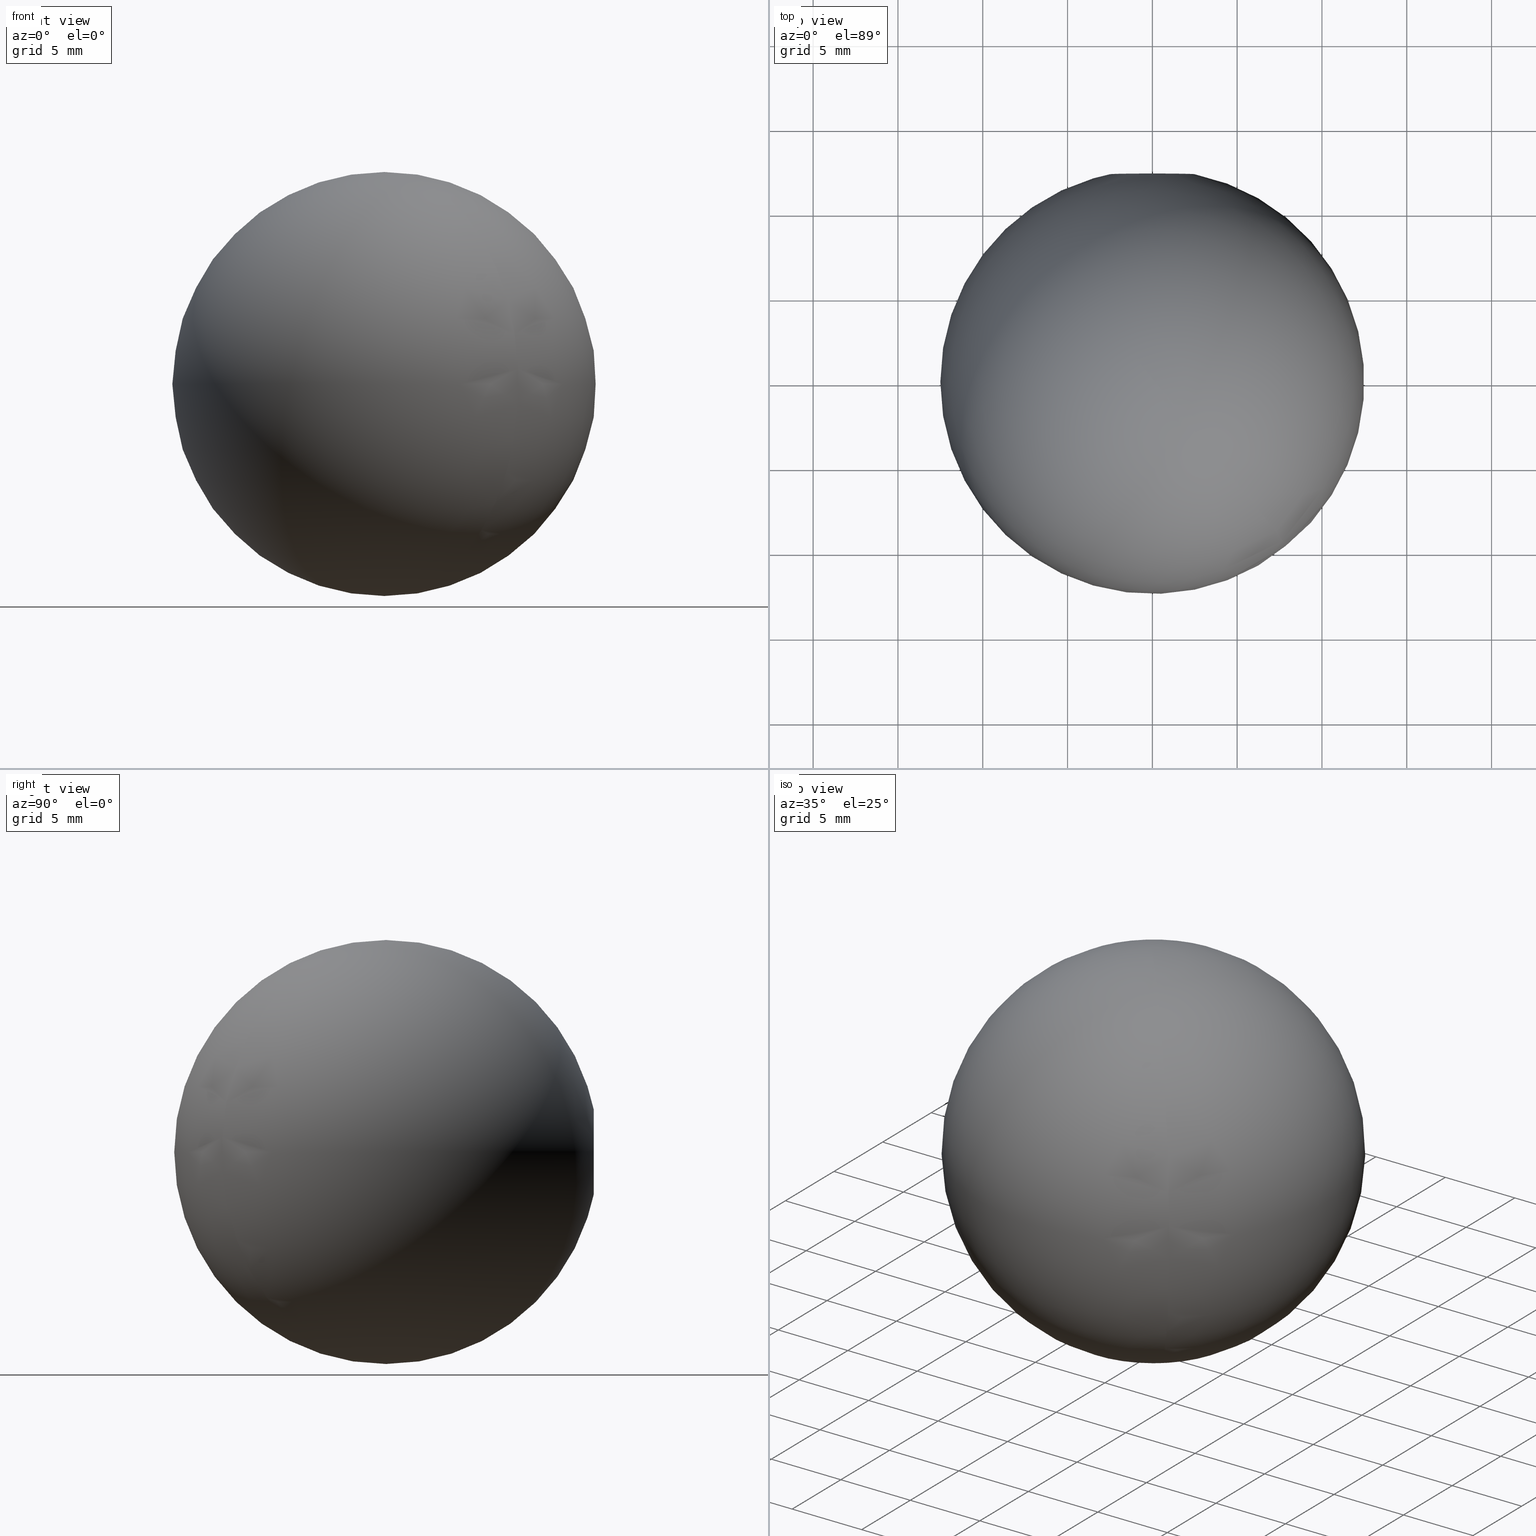
[diagram: canonical four-view strip — front | top / right | iso, engineering-drawing reading convention]
A machine part, canonical four-view strip (front | top / right | iso — engineering-drawing reading convention). The complete STEP part file that produces these views, byte-faithful:
ISO-10303-21;
HEADER;
FILE_DESCRIPTION (( 'STEP AP203' ),
    '1' );
FILE_NAME ('3572-M6.STEP',
    '2022-03-21T07:36:23',
    ( '' ),
    ( '' ),
    'SwSTEP 2.0',
    'SolidWorks 2018',
    '' );
FILE_SCHEMA (( 'CONFIG_CONTROL_DESIGN' ));
ENDSEC;

DATA;
#1 = DIRECTION ( 'NONE',  ( 0.000000000000000000, 0.000000000000000000, 1.000000000000000000 ) ) ;
#2 = APPLICATION_CONTEXT ( 'configuration controlled 3d designs of mechanical parts and assemblies' ) ;
#3 = APPROVAL ( #59, 'UNSPECIFIED' ) ;
#4 = CLOSED_SHELL ( 'NONE', ( #34, #88, #70 ) ) ;
#5 = PERSON ( 'UNSPECIFIED', 'UNSPECIFIED', 'UNSPECIFIED', ('UNSPECIFIED'), ('UNSPECIFIED'), ('UNSPECIFIED') ) ;
#6 = ORIENTED_EDGE ( 'NONE', *, *, #30, .F. ) ;
#7 = LOCAL_TIME ( 8, 36, 23.00000000000000000, #56 ) ;
#8 = CC_DESIGN_PERSON_AND_ORGANIZATION_ASSIGNMENT ( #48, #81, ( #86 ) ) ;
#9 = CARTESIAN_POINT ( 'NONE',  ( 0.000000000000000000, 12.24744871391589207, -2.499999999999992895 ) ) ;
#10 = CC_DESIGN_APPROVAL ( #3, ( #97 ) ) ;
#11 = CARTESIAN_POINT ( 'NONE',  ( 0.000000000000000000, 0.000000000000000000, 0.000000000000000000 ) ) ;
#12 = CARTESIAN_POINT ( 'NONE',  ( 0.000000000000000000, 12.24744871391589207, 0.000000000000000000 ) ) ;
#13 = COORDINATED_UNIVERSAL_TIME_OFFSET ( 1, 0, .AHEAD. ) ;
#14 = CARTESIAN_POINT ( 'NONE',  ( 0.000000000000000000, 0.000000000000000000, 0.000000000000000000 ) ) ;
#15 = PRODUCT_DEFINITION ( 'UNKNOWN', '', #39, #109 ) ;
#16 = COORDINATED_UNIVERSAL_TIME_OFFSET ( 1, 0, .AHEAD. ) ;
#17 = FACE_OUTER_BOUND ( 'NONE', #123, .T. ) ;
#18 = CC_DESIGN_DATE_AND_TIME_ASSIGNMENT ( #125, #76, ( #97 ) ) ;
#19 = CC_DESIGN_SECURITY_CLASSIFICATION ( #97, ( #39 ) ) ;
#20 = CARTESIAN_POINT ( 'NONE',  ( 0.000000000000000000, -8.500000000000000000, 2.499999999999995559 ) ) ;
#21 =( GEOMETRIC_REPRESENTATION_CONTEXT ( 3 ) GLOBAL_UNCERTAINTY_ASSIGNED_CONTEXT ( ( #46 ) ) GLOBAL_UNIT_ASSIGNED_CONTEXT ( ( #82, #42, #25 ) ) REPRESENTATION_CONTEXT ( 'NONE', 'WORKASPACE' ) );
#22 = DIRECTION ( 'NONE',  ( 0.000000000000000000, 0.000000000000000000, -1.000000000000000000 ) ) ;
#23 = PERSON_AND_ORGANIZATION ( #5, #126 ) ;
#24 = APPROVAL_PERSON_ORGANIZATION ( #69, #3, #43 ) ;
#25 =( NAMED_UNIT ( * ) SI_UNIT ( $, .STERADIAN. ) SOLID_ANGLE_UNIT ( ) );
#26 = APPROVAL_STATUS ( 'not_yet_approved' ) ;
#27 = PERSON_AND_ORGANIZATION_ROLE ( 'classification_officer' ) ;
#28 = VERTEX_POINT ( 'NONE', #9 ) ;
#29 = CC_DESIGN_DATE_AND_TIME_ASSIGNMENT ( #45, #101, ( #15 ) ) ;
#30 = EDGE_CURVE ( 'NONE', #28, #28, #40, .T. ) ;
#31 = AXIS2_PLACEMENT_3D ( 'NONE', #11, #55, #66 ) ;
#32 = PERSON_AND_ORGANIZATION ( #5, #126 ) ;
#33 = VERTEX_POINT ( 'NONE', #20 ) ;
#34 = ADVANCED_FACE ( 'NONE', ( #104 ), #111, .T. ) ;
#35 = DIRECTION ( 'NONE',  ( 0.000000000000000000, 0.000000000000000000, 1.000000000000000000 ) ) ;
#36 = COORDINATED_UNIVERSAL_TIME_OFFSET ( 1, 0, .AHEAD. ) ;
#37 = PRODUCT_RELATED_PRODUCT_CATEGORY ( 'detail', '', ( #86 ) ) ;
#38 = APPROVAL_DATE_TIME ( #83, #49 ) ;
#39 = PRODUCT_DEFINITION_FORMATION_WITH_SPECIFIED_SOURCE ( 'ANY', '', #86, .NOT_KNOWN. ) ;
#40 = CIRCLE ( 'NONE', #128, 2.499999999999992895 ) ;
#41 = EDGE_LOOP ( 'NONE', ( #6 ) ) ;
#42 =( NAMED_UNIT ( * ) PLANE_ANGLE_UNIT ( ) SI_UNIT ( $, .RADIAN. ) );
#43 = APPROVAL_ROLE ( '' ) ;
#44 = APPROVAL ( #105, 'UNSPECIFIED' ) ;
#45 = DATE_AND_TIME ( #85, #120 ) ;
#46 = UNCERTAINTY_MEASURE_WITH_UNIT (LENGTH_MEASURE( 1.000000000000000082E-05 ), #82, 'distance_accuracy_value', 'NONE');
#47 = CC_DESIGN_APPROVAL ( #49, ( #39 ) ) ;
#48 = PERSON_AND_ORGANIZATION ( #5, #126 ) ;
#49 = APPROVAL ( #26, 'UNSPECIFIED' ) ;
#50 = DIRECTION ( 'NONE',  ( -0.000000000000000000, 1.000000000000000000, -0.000000000000000000 ) ) ;
#51 = LOCAL_TIME ( 8, 36, 23.00000000000000000, #36 ) ;
#52 = PERSON_AND_ORGANIZATION_ROLE ( 'creator' ) ;
#53 = CC_DESIGN_PERSON_AND_ORGANIZATION_ASSIGNMENT ( #133, #68, ( #39 ) ) ;
#54 = AXIS2_PLACEMENT_3D ( 'NONE', #89, #113, #135 ) ;
#55 = DIRECTION ( 'NONE',  ( -0.000000000000000000, -0.000000000000000000, -1.000000000000000000 ) ) ;
#56 = COORDINATED_UNIVERSAL_TIME_OFFSET ( 1, 0, .AHEAD. ) ;
#57 = APPROVAL_ROLE ( '' ) ;
#58 = APPLICATION_PROTOCOL_DEFINITION ( 'international standard', 'config_control_design', 1994, #127 ) ;
#59 = APPROVAL_STATUS ( 'not_yet_approved' ) ;
#60 = PERSON_AND_ORGANIZATION ( #5, #126 ) ;
#61 = FACE_OUTER_BOUND ( 'NONE', #108, .T. ) ;
#62 = LOCAL_TIME ( 8, 36, 23.00000000000000000, #16 ) ;
#63 = MANIFOLD_SOLID_BREP ( 'M6 Gewindebohrung1', #4 ) ;
#64 = DATE_AND_TIME ( #110, #62 ) ;
#65 = CARTESIAN_POINT ( 'NONE',  ( 0.000000000000000000, 12.50000000000000000, 0.000000000000000000 ) ) ;
#66 = DIRECTION ( 'NONE',  ( -1.000000000000000000, 0.000000000000000000, 0.000000000000000000 ) ) ;
#67 = PERSON_AND_ORGANIZATION ( #5, #126 ) ;
#68 = PERSON_AND_ORGANIZATION_ROLE ( 'creator' ) ;
#69 = PERSON_AND_ORGANIZATION ( #5, #126 ) ;
#70 = ADVANCED_FACE ( 'NONE', ( #17, #80 ), #107, .F. ) ;
#71 = CC_DESIGN_PERSON_AND_ORGANIZATION_ASSIGNMENT ( #100, #116, ( #39 ) ) ;
#72 = CARTESIAN_POINT ( 'NONE',  ( 0.000000000000000000, -8.500000000000000000, 0.000000000000000000 ) ) ;
#73 = DIRECTION ( 'NONE',  ( -0.000000000000000000, 1.000000000000000000, -0.000000000000000000 ) ) ;
#74 = CALENDAR_DATE ( 2022, 21, 3 ) ;
#75 = MECHANICAL_CONTEXT ( 'NONE', #2, 'mechanical' ) ;
#76 = DATE_TIME_ROLE ( 'classification_date' ) ;
#77 = CALENDAR_DATE ( 2022, 21, 3 ) ;
#78 = APPROVAL_PERSON_ORGANIZATION ( #32, #44, #102 ) ;
#79 = CC_DESIGN_APPROVAL ( #44, ( #15 ) ) ;
#80 = FACE_OUTER_BOUND ( 'NONE', #98, .T. ) ;
#81 = PERSON_AND_ORGANIZATION_ROLE ( 'design_owner' ) ;
#82 =( LENGTH_UNIT ( ) NAMED_UNIT ( * ) SI_UNIT ( .MILLI., .METRE. ) );
#83 = DATE_AND_TIME ( #115, #7 ) ;
#84 = ORIENTED_EDGE ( 'NONE', *, *, #30, .T. ) ;
#85 = CALENDAR_DATE ( 2022, 21, 3 ) ;
#86 = PRODUCT ( '3572-M6', '3572-M6', '', ( #75 ) ) ;
#87 = ORIENTED_EDGE ( 'NONE', *, *, #112, .F. ) ;
#88 = ADVANCED_FACE ( 'NONE', ( #61 ), #131, .F. ) ;
#89 = CARTESIAN_POINT ( 'NONE',  ( 0.000000000000000000, -8.500000000000000000, 0.000000000000000000 ) ) ;
#90 = CC_DESIGN_PERSON_AND_ORGANIZATION_ASSIGNMENT ( #67, #52, ( #15 ) ) ;
#91 = DIRECTION ( 'NONE',  ( 1.000000000000000000, 0.000000000000000000, 0.000000000000000000 ) ) ;
#92 = PRODUCT_DEFINITION_SHAPE ( 'NONE', 'NONE',  #15 ) ;
#93 = AXIS2_PLACEMENT_3D ( 'NONE', #72, #73, #1 ) ;
#94 = AXIS2_PLACEMENT_3D ( 'NONE', #14, #35, #91 ) ;
#95 = COORDINATED_UNIVERSAL_TIME_OFFSET ( 1, 0, .AHEAD. ) ;
#96 = SHAPE_DEFINITION_REPRESENTATION ( #92, #132 ) ;
#97 = SECURITY_CLASSIFICATION ( '', '', #119 ) ;
#98 = EDGE_LOOP ( 'NONE', ( #87 ) ) ;
#99 = DIRECTION ( 'NONE',  ( -0.000000000000000000, 1.000000000000000000, -0.000000000000000000 ) ) ;
#100 = PERSON_AND_ORGANIZATION ( #5, #126 ) ;
#101 = DATE_TIME_ROLE ( 'creation_date' ) ;
#102 = APPROVAL_ROLE ( '' ) ;
#103 = APPLICATION_PROTOCOL_DEFINITION ( 'international standard', 'config_control_design', 1994, #2 ) ;
#104 = FACE_OUTER_BOUND ( 'NONE', #41, .T. ) ;
#105 = APPROVAL_STATUS ( 'not_yet_approved' ) ;
#106 = APPROVAL_PERSON_ORGANIZATION ( #60, #49, #57 ) ;
#107 = CYLINDRICAL_SURFACE ( 'NONE', #134, 2.499999999999992895 ) ;
#108 = EDGE_LOOP ( 'NONE', ( #118 ) ) ;
#109 = DESIGN_CONTEXT ( 'detailed design', #127, 'design' ) ;
#110 = CALENDAR_DATE ( 2022, 21, 3 ) ;
#111 = SPHERICAL_SURFACE ( 'NONE', #31, 12.50000000000000000 ) ;
#112 = EDGE_CURVE ( 'NONE', #33, #33, #122, .T. ) ;
#113 = DIRECTION ( 'NONE',  ( -0.000000000000000000, 1.000000000000000000, -0.000000000000000000 ) ) ;
#114 = DIRECTION ( 'NONE',  ( 0.000000000000000000, 0.000000000000000000, 1.000000000000000000 ) ) ;
#115 = CALENDAR_DATE ( 2022, 21, 3 ) ;
#116 = PERSON_AND_ORGANIZATION_ROLE ( 'design_supplier' ) ;
#117 = DATE_AND_TIME ( #77, #51 ) ;
#118 = ORIENTED_EDGE ( 'NONE', *, *, #112, .T. ) ;
#119 = SECURITY_CLASSIFICATION_LEVEL ( 'unclassified' ) ;
#120 = LOCAL_TIME ( 8, 36, 23.00000000000000000, #13 ) ;
#121 = APPROVAL_DATE_TIME ( #64, #44 ) ;
#122 = CIRCLE ( 'NONE', #54, 2.499999999999995559 ) ;
#123 = EDGE_LOOP ( 'NONE', ( #84 ) ) ;
#124 = CC_DESIGN_PERSON_AND_ORGANIZATION_ASSIGNMENT ( #23, #27, ( #97 ) ) ;
#125 = DATE_AND_TIME ( #74, #130 ) ;
#126 = ORGANIZATION ( 'UNSPECIFIED', 'UNSPECIFIED', '' ) ;
#127 = APPLICATION_CONTEXT ( 'configuration controlled 3d designs of mechanical parts and assemblies' ) ;
#128 = AXIS2_PLACEMENT_3D ( 'NONE', #12, #50, #22 ) ;
#129 = APPROVAL_DATE_TIME ( #117, #3 ) ;
#130 = LOCAL_TIME ( 8, 36, 23.00000000000000000, #95 ) ;
#131 = CONICAL_SURFACE ( 'NONE', #93, 2.499999999999995559, 1.029744258676651869 ) ;
#132 = ADVANCED_BREP_SHAPE_REPRESENTATION ( '3572-M6', ( #63, #94 ), #21 ) ;
#133 = PERSON_AND_ORGANIZATION ( #5, #126 ) ;
#134 = AXIS2_PLACEMENT_3D ( 'NONE', #65, #99, #114 ) ;
#135 = DIRECTION ( 'NONE',  ( 0.000000000000000000, 0.000000000000000000, 1.000000000000000000 ) ) ;
ENDSEC;
END-ISO-10303-21;
